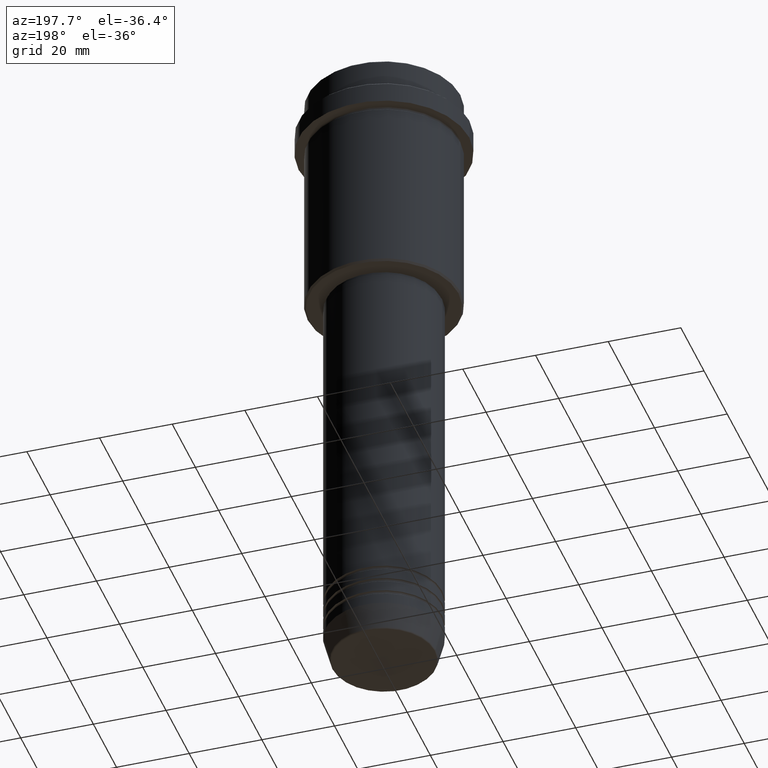
[diagram: clean part render]
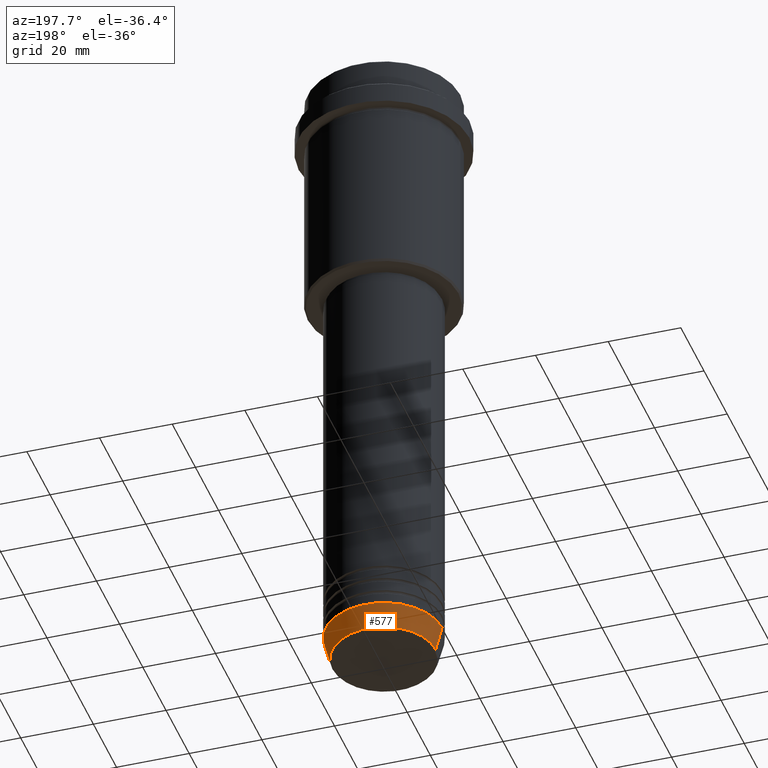
[diagram: same view with one face highlighted and labeled with its STEP entity id]
A machine part, auxiliary view. The second image highlights one B-rep face of the part: STEP entity #577.
In plain terms, the highlighted conical surface has half-angle 15 deg.
Its self-contained STEP definition (entity closure, byte-faithful):
#105 = ORIENTED_EDGE ( 'NONE', *, *, #955, .F. ) ;
#149 = LINE ( 'NONE', #258, #937 ) ;
#187 = CARTESIAN_POINT ( 'NONE',  ( 0.000000000000000000, 0.000000000000000000, -173.0000000000000284 ) ) ;
#211 = EDGE_LOOP ( 'NONE', ( #1323, #993, #105, #1370 ) ) ;
#247 = VECTOR ( 'NONE', #765, 1000.000000000000000 ) ;
#258 = CARTESIAN_POINT ( 'NONE',  ( -16.00000000000000000, 1.959434878635765131E-15, -173.0000000000000284 ) ) ;
#302 = CARTESIAN_POINT ( 'NONE',  ( 14.22365507213719660, 0.000000000000000000, -179.6294095225512706 ) ) ;
#383 = DIRECTION ( 'NONE',  ( -0.2588190451025213501, 3.169619151431772337E-17, 0.9659258262890680902 ) ) ;
#384 = AXIS2_PLACEMENT_3D ( 'NONE', #1022, #471, #1336 ) ;
#428 = EDGE_CURVE ( 'NONE', #1307, #1216, #149, .T. ) ;
#471 = DIRECTION ( 'NONE',  ( -0.000000000000000000, -0.000000000000000000, 1.000000000000000000 ) ) ;
#493 = CARTESIAN_POINT ( 'NONE',  ( -16.00000000000000000, 1.959434878635765131E-15, -173.0000000000000284 ) ) ;
#515 = LINE ( 'NONE', #1168, #247 ) ;
#519 = AXIS2_PLACEMENT_3D ( 'NONE', #1191, #952, #1378 ) ;
#568 = EDGE_CURVE ( 'NONE', #1387, #1353, #515, .T. ) ;
#577 = ADVANCED_FACE ( 'NONE', ( #1193 ), #1210, .T. ) ;
#691 = EDGE_CURVE ( 'NONE', #1387, #1307, #1071, .T. ) ;
#765 = DIRECTION ( 'NONE',  ( 0.2588190451025213501, 0.000000000000000000, 0.9659258262890680902 ) ) ;
#800 = CARTESIAN_POINT ( 'NONE',  ( -14.22365507213719660, 1.850665122131324126E-15, -179.6294095225512706 ) ) ;
#856 = DIRECTION ( 'NONE',  ( 1.000000000000000000, 0.000000000000000000, 0.000000000000000000 ) ) ;
#937 = VECTOR ( 'NONE', #383, 1000.000000000000000 ) ;
#952 = DIRECTION ( 'NONE',  ( -0.000000000000000000, -0.000000000000000000, 1.000000000000000000 ) ) ;
#955 = EDGE_CURVE ( 'NONE', #1353, #1216, #1139, .T. ) ;
#993 = ORIENTED_EDGE ( 'NONE', *, *, #428, .T. ) ;
#1022 = CARTESIAN_POINT ( 'NONE',  ( 0.000000000000000000, 0.000000000000000000, -179.6294095225512706 ) ) ;
#1071 = CIRCLE ( 'NONE', #384, 14.22365507213719660 ) ;
#1139 = CIRCLE ( 'NONE', #519, 16.00000000000000000 ) ;
#1168 = CARTESIAN_POINT ( 'NONE',  ( 16.00000000000000000, 0.000000000000000000, -173.0000000000000284 ) ) ;
#1181 = AXIS2_PLACEMENT_3D ( 'NONE', #187, #1389, #856 ) ;
#1191 = CARTESIAN_POINT ( 'NONE',  ( 0.000000000000000000, 0.000000000000000000, -173.0000000000000284 ) ) ;
#1193 = FACE_OUTER_BOUND ( 'NONE', #211, .T. ) ;
#1210 = CONICAL_SURFACE ( 'NONE', #1181, 16.00000000000000000, 0.2617993877991500740 ) ;
#1216 = VERTEX_POINT ( 'NONE', #493 ) ;
#1281 = CARTESIAN_POINT ( 'NONE',  ( 16.00000000000000000, 0.000000000000000000, -173.0000000000000284 ) ) ;
#1307 = VERTEX_POINT ( 'NONE', #800 ) ;
#1323 = ORIENTED_EDGE ( 'NONE', *, *, #691, .T. ) ;
#1336 = DIRECTION ( 'NONE',  ( 1.000000000000000000, 0.000000000000000000, 0.000000000000000000 ) ) ;
#1353 = VERTEX_POINT ( 'NONE', #1281 ) ;
#1370 = ORIENTED_EDGE ( 'NONE', *, *, #568, .F. ) ;
#1378 = DIRECTION ( 'NONE',  ( 1.000000000000000000, 0.000000000000000000, 0.000000000000000000 ) ) ;
#1387 = VERTEX_POINT ( 'NONE', #302 ) ;
#1389 = DIRECTION ( 'NONE',  ( -0.000000000000000000, -0.000000000000000000, 1.000000000000000000 ) ) ;